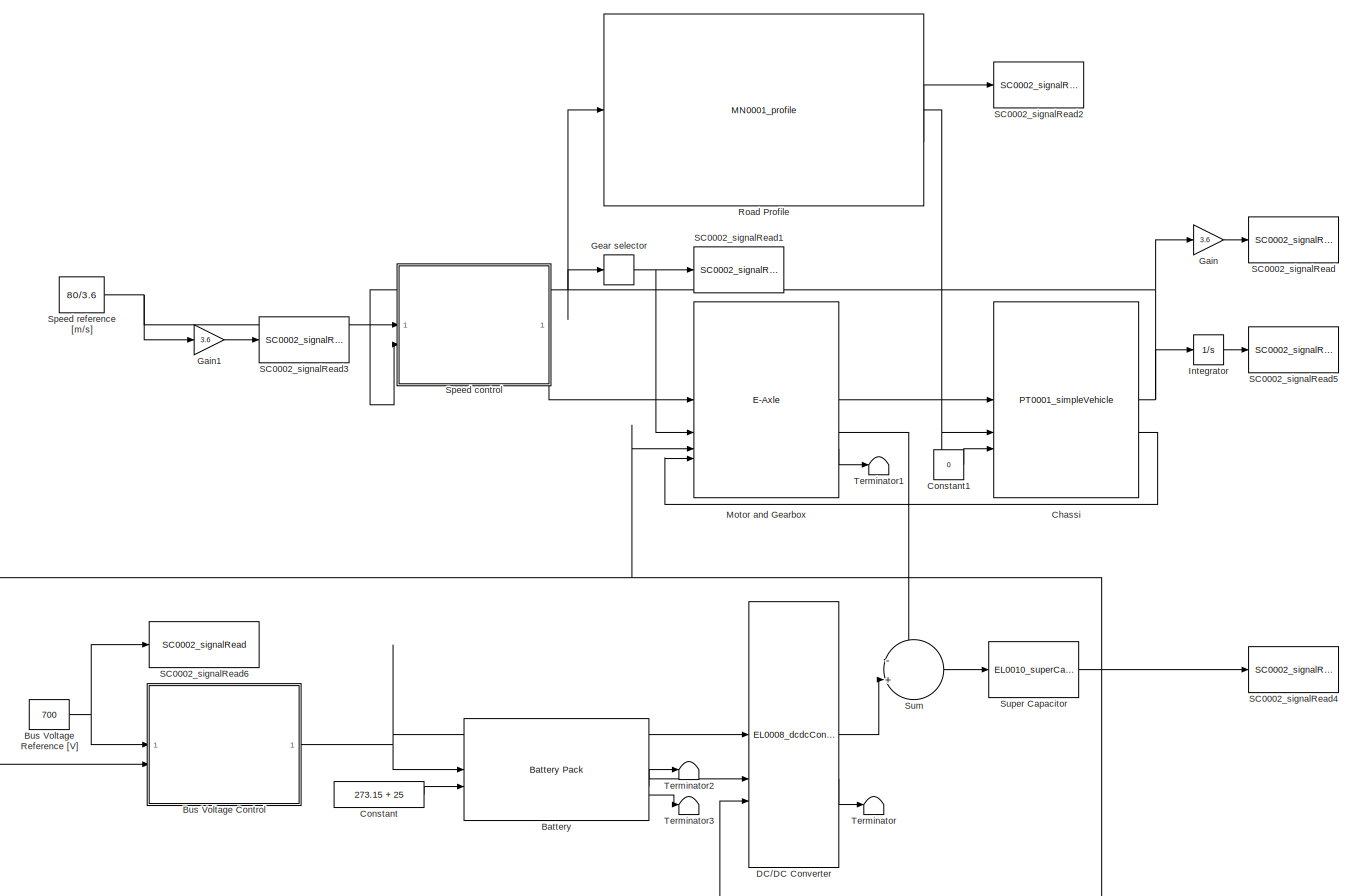
[diagram: root canvas - part 1/1, most of the canvas]
MODEL slx_7deff631093a
KIND model
CONFIG AbsTol = auto
CONFIG EnableMultiTasking = off
CONFIG FixedStep = auto
CONFIG MaxStep = 1e-1
CONFIG MinStep = auto
CONFIG RelTol = 1e-4
CONFIG SampleTimeConstraint = Unconstrained
CONFIG SolverName = ode23tb
CONFIG StartTime = 0.0
CONFIG StopTime = 100e3
BLOCK [Reference] Battery  REF=component_lib/Battery Pack  (lib defined in slx_7b23c5cf3aa6)
  SourceBlock = component_lib/Battery Pack
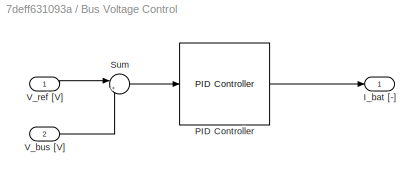
BLOCK [SubSystem] Bus Voltage Control
BLOCK [Outport] Bus Voltage Control/I_bat [-]
BLOCK [Reference] Bus Voltage Control/PID Controller  REF=slpidlib/PID Controller
  SourceBlock = slpidlib/PID Controller
  SourceType = PID 1dof
BLOCK [Sum] Bus Voltage Control/Sum
  Inputs = |+-
BLOCK [Inport] Bus Voltage Control/V_bus [V]
  Port = 2
BLOCK [Inport] Bus Voltage Control/V_ref [V]
BLOCK [Constant] Bus Voltage Reference [V]
  Value = 700
BLOCK [Reference] Chassi  REF=component_lib/Powertrain/PT0001_simpleVehicle  (lib defined in slx_7b23c5cf3aa6)
  SourceBlock = component_lib/Powertrain/PT0001_simpleVehicle
BLOCK [Constant] Constant
  Value = 273.15 + 25
BLOCK [Constant] Constant1
  Value = 0
BLOCK [Reference] DC//DC Converter  REF=component_lib/Electrochemistry/EL0008_dcdcConverter  (lib defined in slx_7b23c5cf3aa6)
  SourceBlock = component_lib/Electrochemistry/EL0008_dcdcConverter
BLOCK [Gain] Gain
  Gain = 3.6
BLOCK [Gain] Gain1
  Gain = 3.6
BLOCK [Relay] Gear selector
  OffOutputValue = 3
  OffSwitchValue = 21.5
  OnOutputValue = 4
  OnSwitchValue = 22
BLOCK [Integrator] Integrator
BLOCK [Reference] Motor and Gearbox  REF=component_lib/E-Axle  (lib defined in slx_7b23c5cf3aa6)
  SourceBlock = component_lib/E-Axle
BLOCK [Reference] Road Profile  REF=component_lib/Mission/MN0001_profile  (lib defined in slx_7b23c5cf3aa6)
  SourceBlock = component_lib/Mission/MN0001_profile
BLOCK [Reference] SC0002_signalRead  REF=component_lib/Data & Control/SC0002_signalRead  (lib defined in slx_7b23c5cf3aa6)
  SourceBlock = component_lib/Data & Control/SC0002_signalRead
BLOCK [Reference] SC0002_signalRead1  REF=component_lib/Data & Control/SC0002_signalRead  (lib defined in slx_7b23c5cf3aa6)
  SourceBlock = component_lib/Data & Control/SC0002_signalRead
BLOCK [Reference] SC0002_signalRead2  REF=component_lib/Data & Control/SC0002_signalRead  (lib defined in slx_7b23c5cf3aa6)
  SourceBlock = component_lib/Data & Control/SC0002_signalRead
BLOCK [Reference] SC0002_signalRead3  REF=component_lib/Data & Control/SC0002_signalRead  (lib defined in slx_7b23c5cf3aa6)
  SourceBlock = component_lib/Data & Control/SC0002_signalRead
BLOCK [Reference] SC0002_signalRead4  REF=component_lib/Data & Control/SC0002_signalRead  (lib defined in slx_7b23c5cf3aa6)
  SourceBlock = component_lib/Data & Control/SC0002_signalRead
BLOCK [Reference] SC0002_signalRead5  REF=component_lib/Data & Control/SC0002_signalRead  (lib defined in slx_7b23c5cf3aa6)
  SourceBlock = component_lib/Data & Control/SC0002_signalRead
BLOCK [Reference] SC0002_signalRead6  REF=component_lib/Data & Control/SC0002_signalRead  (lib defined in slx_7b23c5cf3aa6)
  SourceBlock = component_lib/Data & Control/SC0002_signalRead
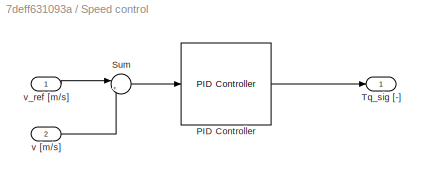
BLOCK [SubSystem] Speed control
BLOCK [Reference] Speed control/PID Controller  REF=slpidlib/PID Controller
  SourceBlock = slpidlib/PID Controller
  SourceType = PID 1dof
BLOCK [Sum] Speed control/Sum
  Inputs = |+-
BLOCK [Outport] Speed control/Tq_sig [-]
BLOCK [Inport] Speed control/v [m//s]
  Port = 2
BLOCK [Inport] Speed control/v_ref [m//s]
BLOCK [Constant] Speed reference [m//s]
  Value = 80/3.6
BLOCK [Sum] Sum
  Inputs = -+|
BLOCK [Reference] Super Capacitor  REF=component_lib/Electrochemistry/EL0010_superCapacitor  (lib defined in slx_7b23c5cf3aa6)
  SourceBlock = component_lib/Electrochemistry/EL0010_superCapacitor
BLOCK [Terminator] Terminator
BLOCK [Terminator] Terminator1
BLOCK [Terminator] Terminator2
  NameLocation = right
BLOCK [Terminator] Terminator3
  NameLocation = right
LINE Battery:1 -> DC//DC Converter:2
LINE Battery:2 -> Terminator2:1
LINE Battery:3 -> Terminator3:1
LINE Bus Voltage Control/PID Controller:1 -> Bus Voltage Control/I_bat [-]:1
LINE Bus Voltage Control/Sum:1 -> Bus Voltage Control/PID Controller:1
LINE Bus Voltage Control/V_bus [V]:1 -> Bus Voltage Control/Sum:2
LINE Bus Voltage Control/V_ref [V]:1 -> Bus Voltage Control/Sum:1
NET Bus Voltage Control:1 -> Battery:1, DC//DC Converter:1
NET Bus Voltage Reference [V]:1 -> Bus Voltage Control:1, SC0002_signalRead6:1
NET Chassi:1 -> Gain:1, Gear selector:1, Integrator:1, Road Profile:1, Speed control:2
LINE Chassi:2 -> Motor and Gearbox:4
LINE Constant1:1 -> Chassi:3
LINE Constant:1 -> Battery:2
LINE DC//DC Converter:1 -> Sum:2
LINE DC//DC Converter:2 -> Terminator:1
LINE Gain1:1 -> SC0002_signalRead3:1
LINE Gain:1 -> SC0002_signalRead:1
NET Gear selector:1 -> Motor and Gearbox:2, SC0002_signalRead1:1
LINE Integrator:1 -> SC0002_signalRead5:1
LINE Motor and Gearbox:1 -> Chassi:1
LINE Motor and Gearbox:2 -> Sum:1
LINE Motor and Gearbox:3 -> Terminator1:1
LINE Road Profile:1 -> Chassi:2
LINE Road Profile:2 -> SC0002_signalRead2:1
LINE Speed control/PID Controller:1 -> Speed control/Tq_sig [-]:1
LINE Speed control/Sum:1 -> Speed control/PID Controller:1
LINE Speed control/v [m//s]:1 -> Speed control/Sum:2
LINE Speed control/v_ref [m//s]:1 -> Speed control/Sum:1
LINE Speed control:1 -> Motor and Gearbox:1
NET Speed reference [m//s]:1 -> Gain1:1, Speed control:1
LINE Sum:1 -> Super Capacitor:1
NET Super Capacitor:1 -> Bus Voltage Control:2, DC//DC Converter:3, Motor and Gearbox:3, SC0002_signalRead4:1
note: NET lines group one-source signal fan-out (src -> all destinations, sorted); 1:1 wires keep LINE
